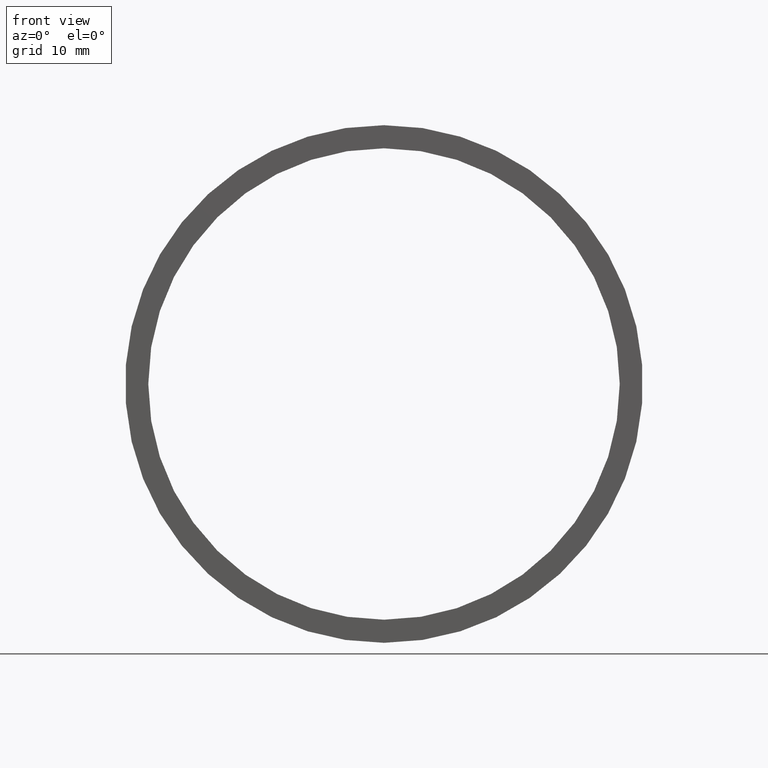
[diagram: clean part render]
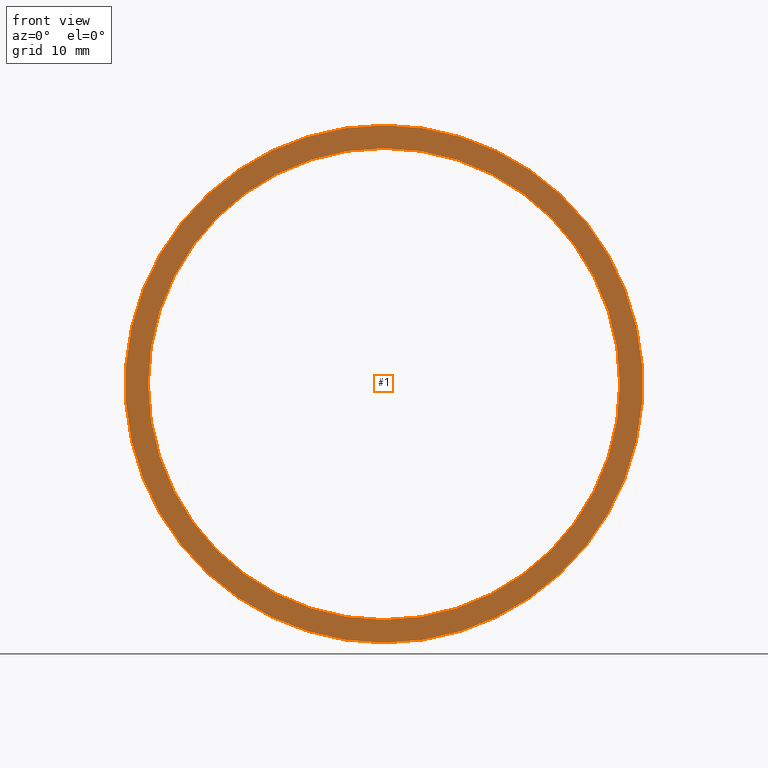
[diagram: same view with one face highlighted and labeled with its STEP entity id]
A machine part, front view. The second image highlights one B-rep face of the part: STEP entity #1.
In plain terms, the highlighted planar face has unit normal (-0, 1, 0).
Its self-contained STEP definition (entity closure, byte-faithful):
#1 = ADVANCED_FACE ( 'NONE', ( #104, #24 ), #207, .F. ) ;
#2 = CARTESIAN_POINT ( 'NONE',  ( 3.122849337825750600E-015, 0.0000000000000000000, -25.50000000000000000 ) ) ;
#12 = VERTEX_POINT ( 'NONE', #53 ) ;
#24 = FACE_BOUND ( 'NONE', #188, .T. ) ;
#29 = CARTESIAN_POINT ( 'NONE',  ( 0.0000000000000000000, 0.0000000000000000000, 0.0000000000000000000 ) ) ;
#30 = VERTEX_POINT ( 'NONE', #2 ) ;
#32 = EDGE_LOOP ( 'NONE', ( #163, #199 ) ) ;
#39 = EDGE_CURVE ( 'NONE', #30, #228, #89, .T. ) ;
#41 = ORIENTED_EDGE ( 'NONE', *, *, #39, .T. ) ;
#42 = DIRECTION ( 'NONE',  ( 0.0000000000000000000, 0.0000000000000000000, 1.000000000000000000 ) ) ;
#53 = CARTESIAN_POINT ( 'NONE',  ( 0.0000000000000000000, 0.0000000000000000000, 28.00000000000001100 ) ) ;
#63 = DIRECTION ( 'NONE',  ( -0.0000000000000000000, 1.000000000000000000, -0.0000000000000000000 ) ) ;
#86 = DIRECTION ( 'NONE',  ( 0.0000000000000000000, 0.0000000000000000000, 1.000000000000000000 ) ) ;
#89 = CIRCLE ( 'NONE', #158, 25.50000000000000000 ) ;
#96 = CARTESIAN_POINT ( 'NONE',  ( 0.0000000000000000000, 0.0000000000000000000, 0.0000000000000000000 ) ) ;
#98 = CIRCLE ( 'NONE', #242, 25.50000000000000000 ) ;
#102 = DIRECTION ( 'NONE',  ( -0.0000000000000000000, 1.000000000000000000, -0.0000000000000000000 ) ) ;
#103 = AXIS2_PLACEMENT_3D ( 'NONE', #29, #102, #86 ) ;
#104 = FACE_OUTER_BOUND ( 'NONE', #32, .T. ) ;
#110 = CIRCLE ( 'NONE', #150, 28.00000000000001100 ) ;
#111 = DIRECTION ( 'NONE',  ( -0.0000000000000000000, 1.000000000000000000, -0.0000000000000000000 ) ) ;
#114 = ORIENTED_EDGE ( 'NONE', *, *, #161, .T. ) ;
#118 = DIRECTION ( 'NONE',  ( 0.0000000000000000000, 0.0000000000000000000, 1.000000000000000000 ) ) ;
#125 = VERTEX_POINT ( 'NONE', #195 ) ;
#129 = DIRECTION ( 'NONE',  ( -0.0000000000000000000, 1.000000000000000000, 0.0000000000000000000 ) ) ;
#135 = AXIS2_PLACEMENT_3D ( 'NONE', #204, #129, #222 ) ;
#150 = AXIS2_PLACEMENT_3D ( 'NONE', #180, #63, #118 ) ;
#158 = AXIS2_PLACEMENT_3D ( 'NONE', #96, #229, #42 ) ;
#161 = EDGE_CURVE ( 'NONE', #228, #30, #98, .T. ) ;
#163 = ORIENTED_EDGE ( 'NONE', *, *, #217, .F. ) ;
#168 = CARTESIAN_POINT ( 'NONE',  ( 0.0000000000000000000, 0.0000000000000000000, 0.0000000000000000000 ) ) ;
#180 = CARTESIAN_POINT ( 'NONE',  ( 0.0000000000000000000, 0.0000000000000000000, 0.0000000000000000000 ) ) ;
#187 = CIRCLE ( 'NONE', #103, 28.00000000000001100 ) ;
#188 = EDGE_LOOP ( 'NONE', ( #114, #41 ) ) ;
#195 = CARTESIAN_POINT ( 'NONE',  ( 3.429011037612590100E-015, 0.0000000000000000000, -28.00000000000001100 ) ) ;
#199 = ORIENTED_EDGE ( 'NONE', *, *, #243, .F. ) ;
#204 = CARTESIAN_POINT ( 'NONE',  ( 25.50000000000000000, 0.0000000000000000000, 0.0000000000000000000 ) ) ;
#207 = PLANE ( 'NONE',  #135 ) ;
#217 = EDGE_CURVE ( 'NONE', #12, #125, #110, .T. ) ;
#222 = DIRECTION ( 'NONE',  ( 0.0000000000000000000, 0.0000000000000000000, 1.000000000000000000 ) ) ;
#228 = VERTEX_POINT ( 'NONE', #240 ) ;
#229 = DIRECTION ( 'NONE',  ( -0.0000000000000000000, 1.000000000000000000, -0.0000000000000000000 ) ) ;
#232 = DIRECTION ( 'NONE',  ( 0.0000000000000000000, 0.0000000000000000000, 1.000000000000000000 ) ) ;
#240 = CARTESIAN_POINT ( 'NONE',  ( 0.0000000000000000000, 0.0000000000000000000, 25.50000000000000000 ) ) ;
#242 = AXIS2_PLACEMENT_3D ( 'NONE', #168, #111, #232 ) ;
#243 = EDGE_CURVE ( 'NONE', #125, #12, #187, .T. ) ;